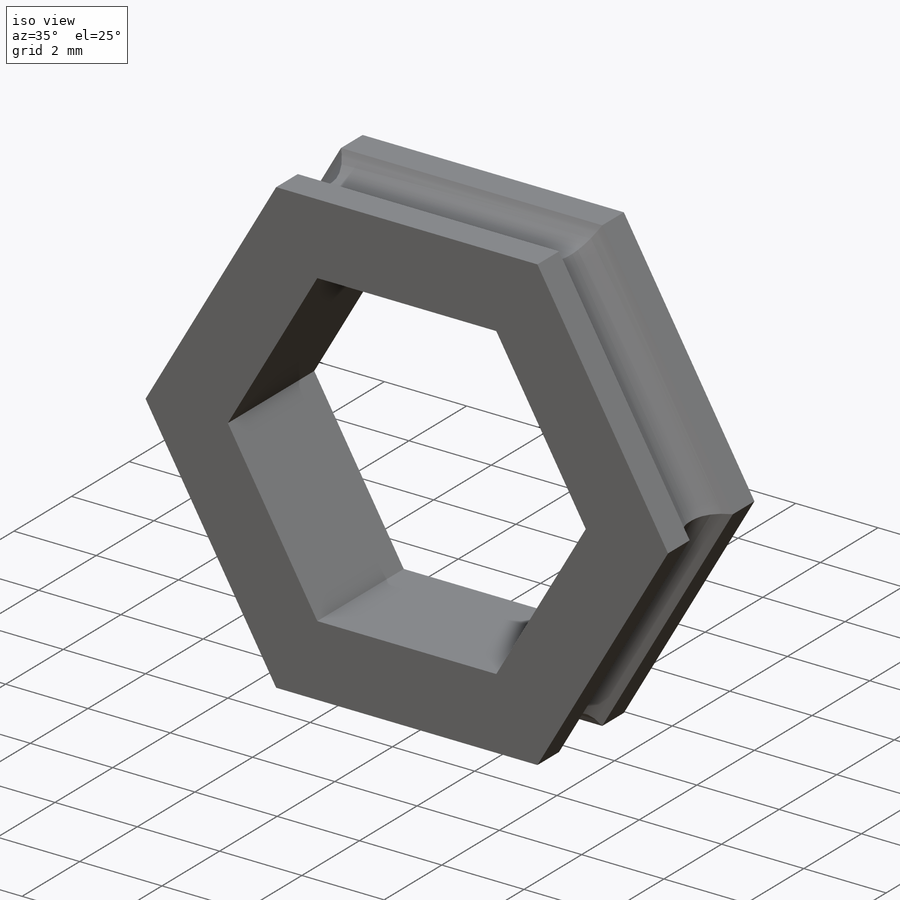
[diagram: iso view]
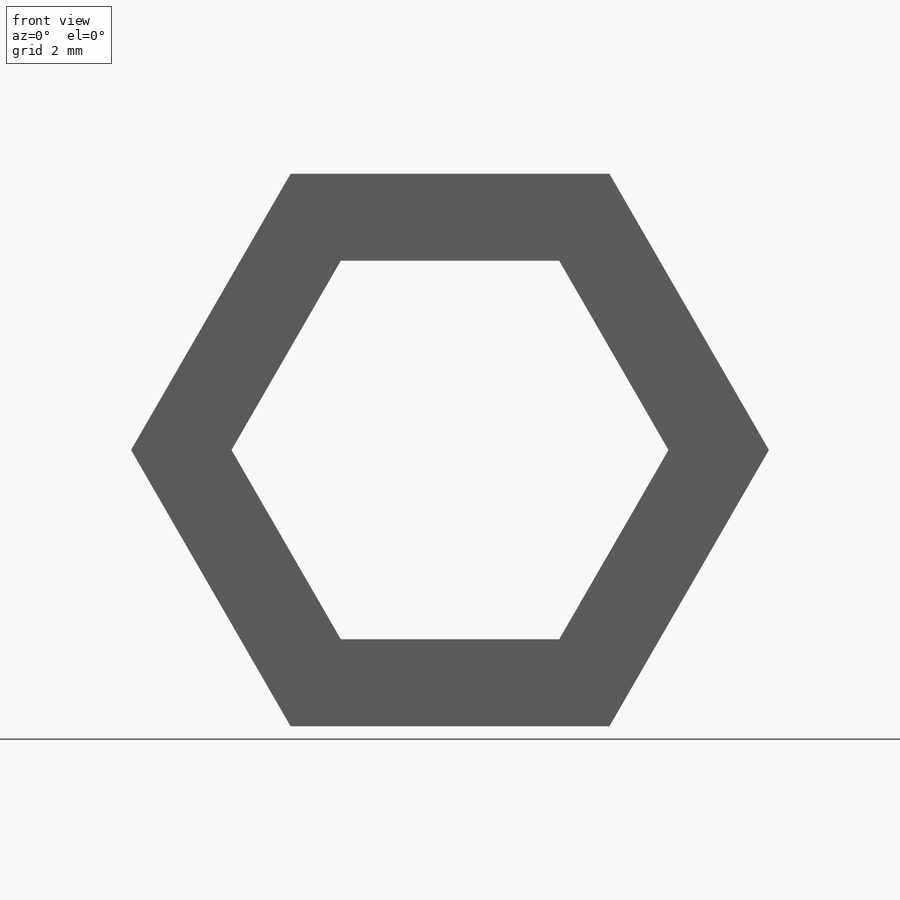
[diagram: front view]
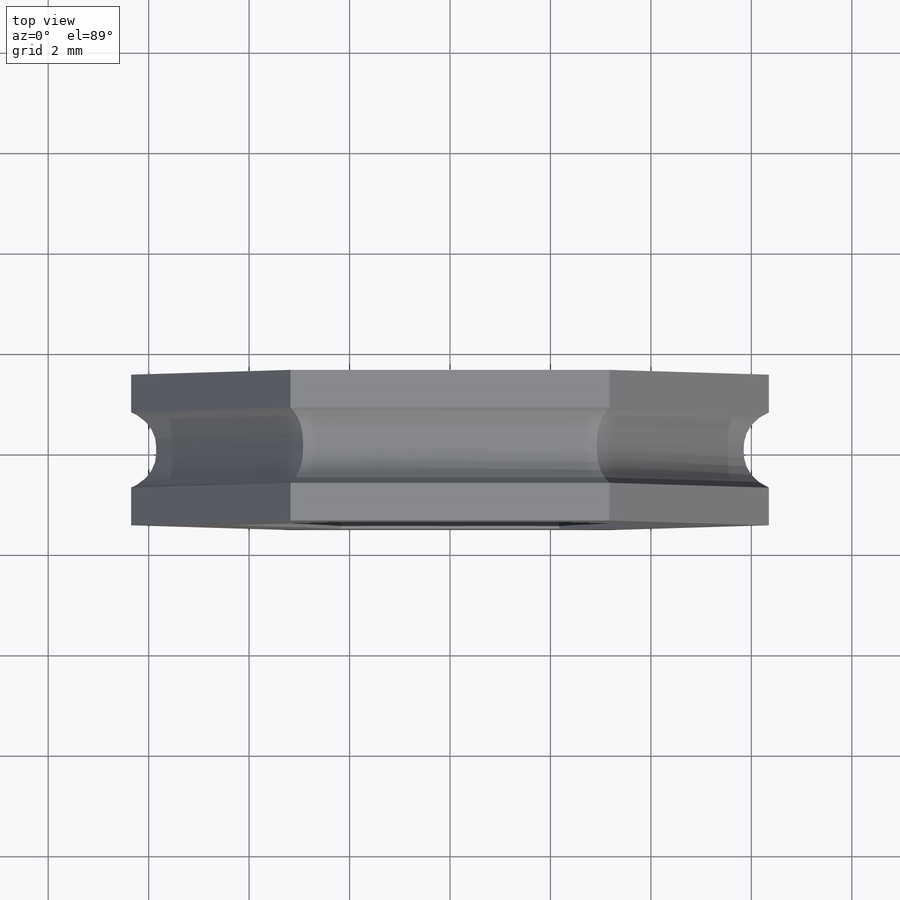
[diagram: top view]
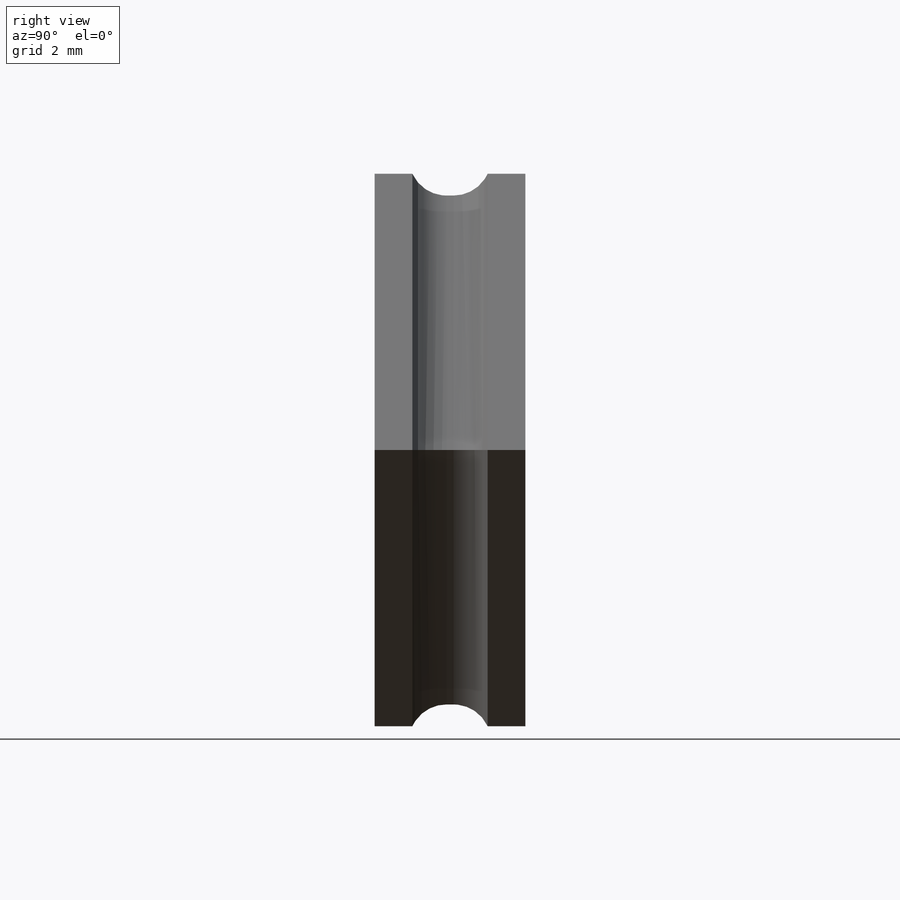
[diagram: right view]
SOLIDWORKS PART (.sldprt)
format: sldprt  version: not decoded by parser v0  size: 271,872 bytes
history: native  units: mm
features: sketch x3, material x1, extrude x1, cut_extrude x1, fillet x1 (+11 scaffold rows collapsed)
feature tree (18):
  scaffold x11  (default folders/planes/origin — collapsed)
  material  "Material <not specified>"
  sketch  "Sketch1"  dims[D1=12.7mm D2=0.5mm D3=1.5mm]
  extrude  "Boss-Extrude2"  Depth=1.5mm
  cut_extrude  "Cut-Extrude1"  [1 undecoded]
  sketch  "Sketch1<4>"  dims[D1=0.75mm D2=0.75mm]
  fillet  "Fillet1"  Radius=0.75mm
  sketch  "Sketch3"  dims[D1=0.75mm]
decode coverage: 5 of 6 modeling features carry decoded parameters
note: 1 parameter value undecoded
note: suppression state not decoded; provenance and decode notes live in map.json
